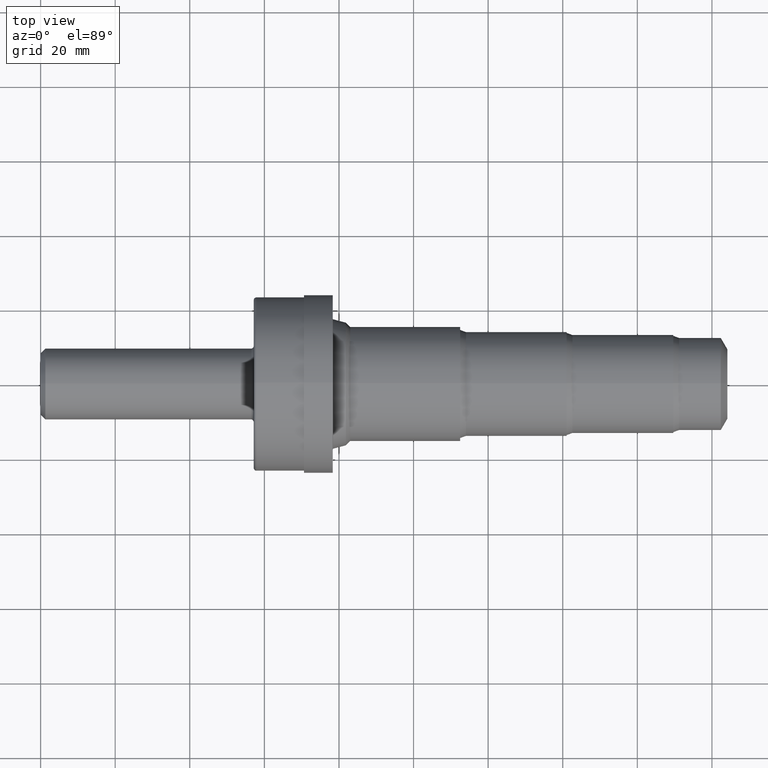
[diagram: clean part render]
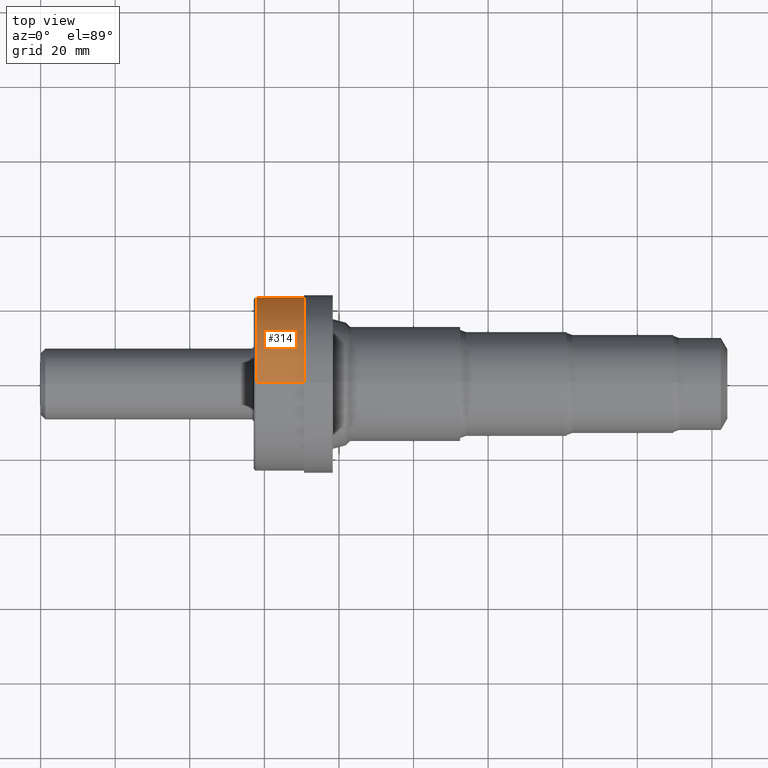
[diagram: same view with one face highlighted and labeled with its STEP entity id]
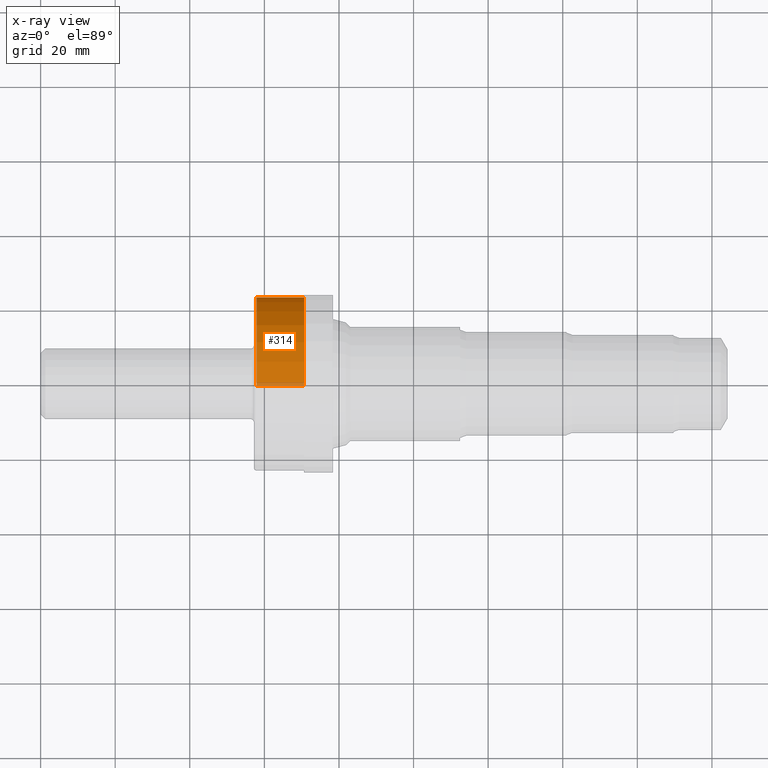
[diagram: x-ray of the same camera — body ghosted, the highlighted face saturated]
A machine part, top view. The second image highlights one B-rep face of the part: STEP entity #314.
The next image is the same camera in x-ray: the body ghosted, the highlighted face saturated — about 3% of this face is hidden behind the body in this view.
In plain terms, the highlighted cylindrical surface (partial cylindrical patch) has radius 23.368 mm, axis along (-1, -0, -0).
Its self-contained STEP definition (entity closure, byte-faithful):
#10 = ORIENTED_EDGE ( 'NONE', *, *, #447, .T. ) ;
#26 = FACE_OUTER_BOUND ( 'NONE', #64, .T. ) ;
#29 = DIRECTION ( 'NONE',  ( -1.000000000000000000, -0.0000000000000000000, -0.0000000000000000000 ) ) ;
#41 = CARTESIAN_POINT ( 'NONE',  ( 0.0000000000000000000, 0.0000000000000000000, 0.9200000000000000400 ) ) ;
#64 = EDGE_LOOP ( 'NONE', ( #793, #10, #182, #526 ) ) ;
#66 = CARTESIAN_POINT ( 'NONE',  ( 2.279999999999999805, 0.0000000000000000000, 0.9200000000000000400 ) ) ;
#80 = CARTESIAN_POINT ( 'NONE',  ( 2.279999999999999805, 0.0000000000000000000, 0.0000000000000000000 ) ) ;
#82 = DIRECTION ( 'NONE',  ( -1.000000000000000000, -0.0000000000000000000, -0.0000000000000000000 ) ) ;
#132 = CIRCLE ( 'NONE', #781, 0.9200000000000000400 ) ;
#182 = ORIENTED_EDGE ( 'NONE', *, *, #1016, .F. ) ;
#194 = EDGE_CURVE ( 'NONE', #548, #815, #1089, .T. ) ;
#252 = EDGE_CURVE ( 'NONE', #548, #1034, #554, .T. ) ;
#314 = ADVANCED_FACE ( 'NONE', ( #26 ), #534, .T. ) ;
#406 = CARTESIAN_POINT ( 'NONE',  ( 2.781000000000000139, 1.126675055215564921E-16, -0.9200000000000000400 ) ) ;
#447 = EDGE_CURVE ( 'NONE', #815, #683, #946, .T. ) ;
#453 = AXIS2_PLACEMENT_3D ( 'NONE', #918, #1126, #908 ) ;
#526 = ORIENTED_EDGE ( 'NONE', *, *, #252, .F. ) ;
#534 = CYLINDRICAL_SURFACE ( 'NONE', #453, 0.9200000000000000400 ) ;
#540 = DIRECTION ( 'NONE',  ( 0.0000000000000000000, 0.0000000000000000000, 1.000000000000000000 ) ) ;
#548 = VERTEX_POINT ( 'NONE', #1055 ) ;
#553 = CARTESIAN_POINT ( 'NONE',  ( 0.0000000000000000000, 1.126675055215564921E-16, -0.9200000000000000400 ) ) ;
#554 = LINE ( 'NONE', #41, #726 ) ;
#573 = CARTESIAN_POINT ( 'NONE',  ( 2.781000000000000139, 0.0000000000000000000, 0.0000000000000000000 ) ) ;
#580 = DIRECTION ( 'NONE',  ( -1.000000000000000000, -0.0000000000000000000, -0.0000000000000000000 ) ) ;
#599 = DIRECTION ( 'NONE',  ( 0.0000000000000000000, 0.0000000000000000000, 1.000000000000000000 ) ) ;
#683 = VERTEX_POINT ( 'NONE', #1025 ) ;
#726 = VECTOR ( 'NONE', #1112, 39.37007874015748143 ) ;
#752 = VECTOR ( 'NONE', #29, 39.37007874015748143 ) ;
#781 = AXIS2_PLACEMENT_3D ( 'NONE', #80, #82, #540 ) ;
#793 = ORIENTED_EDGE ( 'NONE', *, *, #194, .T. ) ;
#815 = VERTEX_POINT ( 'NONE', #406 ) ;
#863 = AXIS2_PLACEMENT_3D ( 'NONE', #573, #580, #599 ) ;
#908 = DIRECTION ( 'NONE',  ( 0.0000000000000000000, 0.0000000000000000000, 1.000000000000000000 ) ) ;
#918 = CARTESIAN_POINT ( 'NONE',  ( 0.0000000000000000000, 0.0000000000000000000, 0.0000000000000000000 ) ) ;
#946 = LINE ( 'NONE', #553, #752 ) ;
#1016 = EDGE_CURVE ( 'NONE', #1034, #683, #132, .T. ) ;
#1025 = CARTESIAN_POINT ( 'NONE',  ( 2.279999999999999805, 1.126675055215564921E-16, -0.9200000000000000400 ) ) ;
#1034 = VERTEX_POINT ( 'NONE', #66 ) ;
#1055 = CARTESIAN_POINT ( 'NONE',  ( 2.781000000000000139, 0.0000000000000000000, 0.9200000000000000400 ) ) ;
#1089 = CIRCLE ( 'NONE', #863, 0.9200000000000000400 ) ;
#1112 = DIRECTION ( 'NONE',  ( -1.000000000000000000, -0.0000000000000000000, -0.0000000000000000000 ) ) ;
#1126 = DIRECTION ( 'NONE',  ( -1.000000000000000000, -0.0000000000000000000, -0.0000000000000000000 ) ) ;